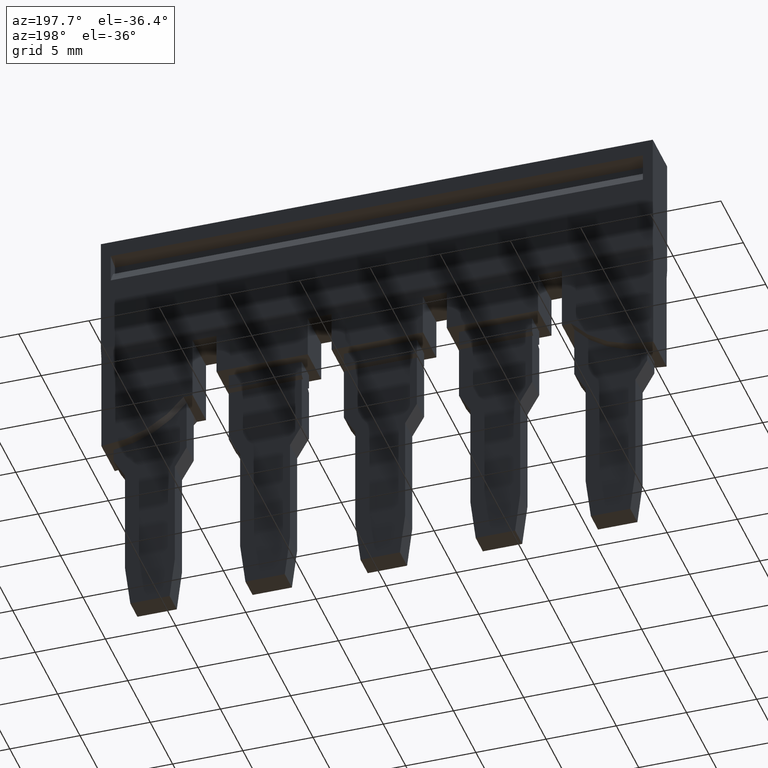
[diagram: clean part render]
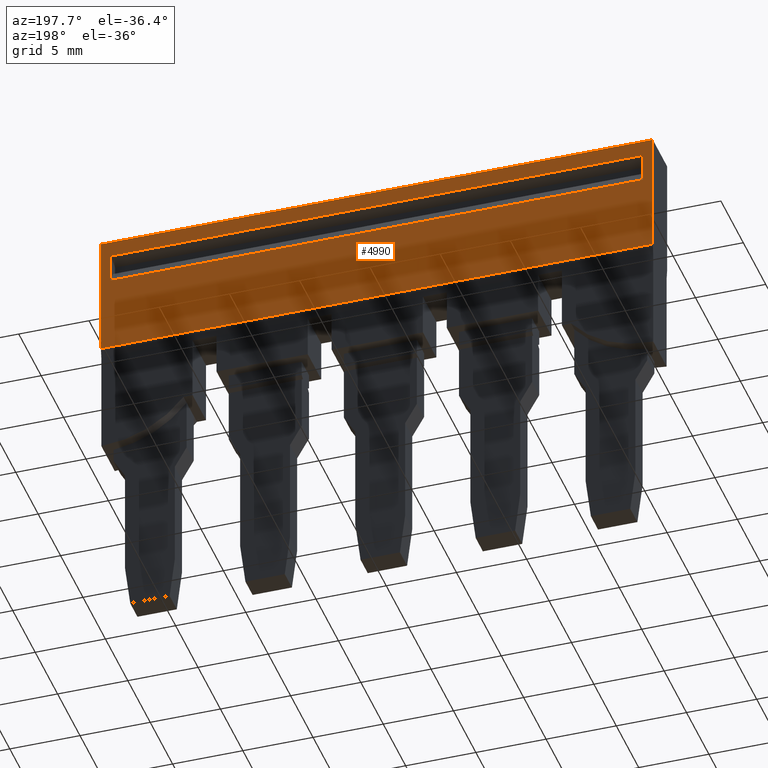
[diagram: same view with one face highlighted and labeled with its STEP entity id]
A machine part, auxiliary view. The second image highlights one B-rep face of the part: STEP entity #4990.
In plain terms, the highlighted planar face has unit normal (0, 1, 0).
Its self-contained STEP definition (entity closure, byte-faithful):
#4260=CARTESIAN_POINT('',(2.58553886079762,-11.5390003875046,
48.5566006037513));
#4270=DIRECTION('',(-1.,-0.,-3.08148791101958E-33));
#4280=DIRECTION('',(0.,-1.,0.));
#4290=AXIS2_PLACEMENT_3D('',#4260,#4270,#4280);
#4300=PLANE('',#4290);
#4310=CARTESIAN_POINT('',(2.58553886079762,-12.8979338181015,
36.3099999999988));
#4320=DIRECTION('',(0.,-1.,0.));
#4330=VECTOR('',#4320,1.);
#4340=LINE('',#4310,#4330);
#4350=CARTESIAN_POINT('',(2.58553886079762,-7.13383522188631,
36.3099999999988));
#4360=VERTEX_POINT('',#4350);
#4370=CARTESIAN_POINT('',(2.58553886079762,-9.17834604764826,
36.3099999999988));
#4380=VERTEX_POINT('',#4370);
#4390=EDGE_CURVE('',#4360,#4380,#4340,.T.);
#4400=ORIENTED_EDGE('',*,*,#4390,.F.);
#4410=CARTESIAN_POINT('',(2.58553886079762,-9.17834604764826,
47.0749840000005));
#4420=DIRECTION('',(-3.08148791101958E-33,1.23259516440783E-32,1.));
#4430=VECTOR('',#4420,1.);
#4440=LINE('',#4410,#4430);
#4450=CARTESIAN_POINT('',(2.58553886079762,-9.17834604764826,
74.2099999999993));
#4460=VERTEX_POINT('',#4450);
#4470=EDGE_CURVE('',#4380,#4460,#4440,.T.);
#4480=ORIENTED_EDGE('',*,*,#4470,.F.);
#4490=CARTESIAN_POINT('',(2.58553886079762,-12.8979338181015,
74.2099999999993));
#4500=DIRECTION('',(0.,1.,0.));
#4510=VECTOR('',#4500,1.);
#4520=LINE('',#4490,#4510);
#4530=CARTESIAN_POINT('',(2.58553886079762,-7.13383522188632,
74.2099999999993));
#4540=VERTEX_POINT('',#4530);
#4550=EDGE_CURVE('',#4460,#4540,#4520,.T.);
#4560=ORIENTED_EDGE('',*,*,#4550,.F.);
#4570=CARTESIAN_POINT('',(2.58553886079762,-7.13383522188631,38.874984))
;
#4580=DIRECTION('',(3.08148791101958E-33,-1.23259516440783E-32,-1.));
#4590=VECTOR('',#4580,1.);
#4600=LINE('',#4570,#4590);
#4610=EDGE_CURVE('',#4540,#4360,#4600,.T.);
#4620=ORIENTED_EDGE('',*,*,#4610,.F.);
#4630=EDGE_LOOP('',(#4620,#4560,#4480,#4400));
#4640=FACE_BOUND('',#4630,.T.);
#4650=CARTESIAN_POINT('',(2.58553886079762,-12.8979338181015,
74.9099999999993));
#4660=DIRECTION('',(0.,-1.,0.));
#4670=VECTOR('',#4660,1.);
#4680=LINE('',#4650,#4670);
#4690=CARTESIAN_POINT('',(2.58553886079762,-5.97280981811658,
74.9099999999993));
#4700=VERTEX_POINT('',#4690);
#4710=CARTESIAN_POINT('',(2.58553886079762,-14.7678098181019,
74.9099999999993));
#4720=VERTEX_POINT('',#4710);
#4730=EDGE_CURVE('',#4700,#4720,#4680,.T.);
#4740=ORIENTED_EDGE('',*,*,#4730,.F.);
#4750=CARTESIAN_POINT('',(2.58553886079762,-14.7678098181019,
47.0749840000005));
#4760=DIRECTION('',(-3.08148791101958E-33,1.23259516440783E-32,1.));
#4770=VECTOR('',#4760,1.);
#4780=LINE('',#4750,#4770);
#4790=CARTESIAN_POINT('',(2.58553886079762,-14.7678098181019,
35.6099999999978));
#4800=VERTEX_POINT('',#4790);
#4810=EDGE_CURVE('',#4800,#4720,#4780,.T.);
#4820=ORIENTED_EDGE('',*,*,#4810,.T.);
#4830=CARTESIAN_POINT('',(2.58553886079762,-12.8979338181015,
35.6099999999978));
#4840=DIRECTION('',(0.,-1.,0.));
#4850=VECTOR('',#4840,1.);
#4860=LINE('',#4830,#4850);
#4870=CARTESIAN_POINT('',(2.58553886079762,-5.97280981811658,
35.6099999999978));
#4880=VERTEX_POINT('',#4870);
#4890=EDGE_CURVE('',#4880,#4800,#4860,.T.);
#4900=ORIENTED_EDGE('',*,*,#4890,.T.);
#4910=CARTESIAN_POINT('',(2.58553886079762,-5.97280981811658,38.874984))
;
#4920=DIRECTION('',(3.08148791101958E-33,-1.23259516440783E-32,-1.));
#4930=VECTOR('',#4920,1.);
#4940=LINE('',#4910,#4930);
#4950=EDGE_CURVE('',#4700,#4880,#4940,.T.);
#4960=ORIENTED_EDGE('',*,*,#4950,.T.);
#4970=EDGE_LOOP('',(#4960,#4900,#4820,#4740));
#4980=FACE_OUTER_BOUND('',#4970,.T.);
#4990=ADVANCED_FACE('',(#4640,#4980),#4300,.T.);